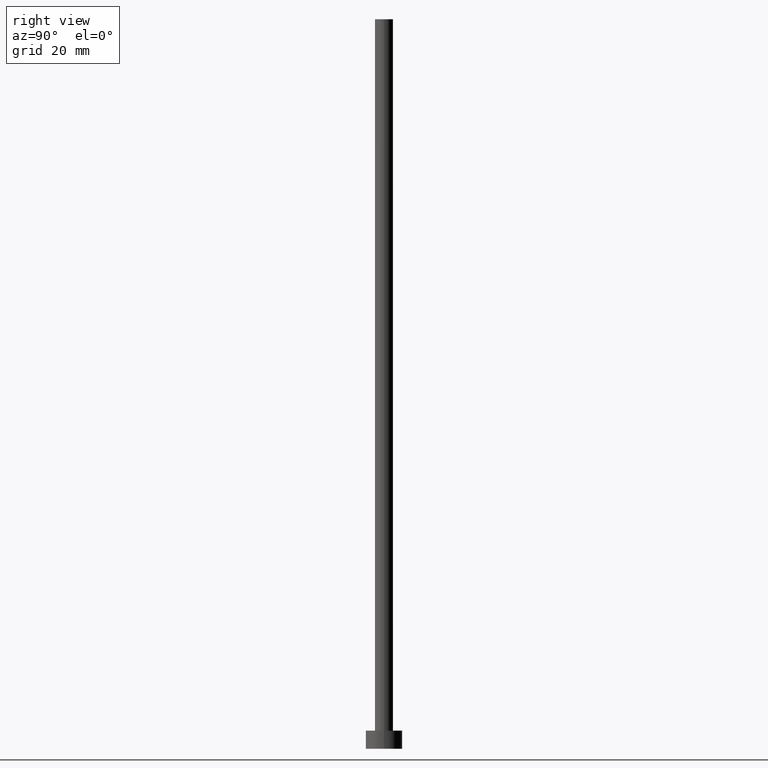
[diagram: clean part render]
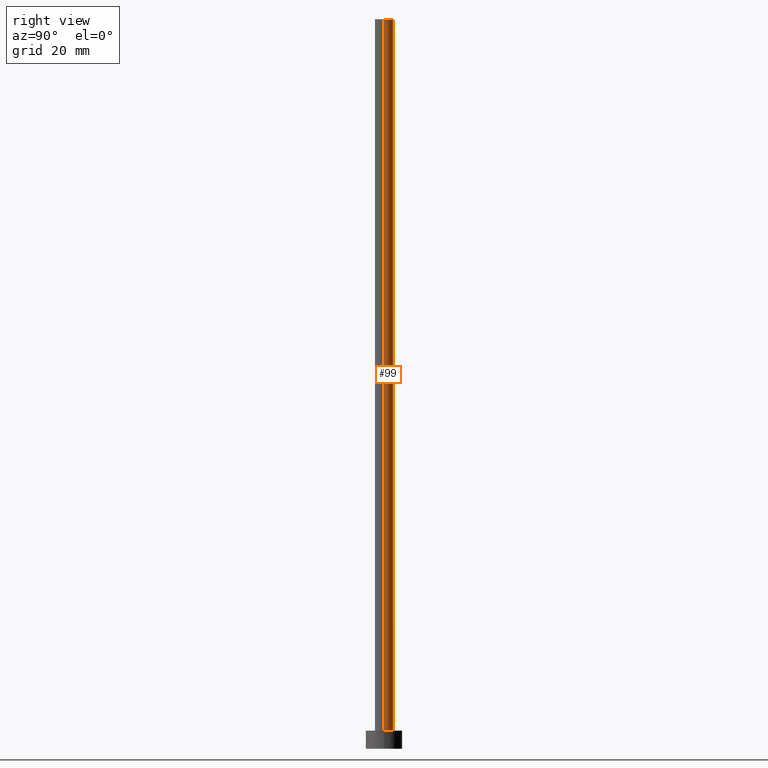
[diagram: same view with one face highlighted and labeled with its STEP entity id]
A machine part, right view. The second image highlights one B-rep face of the part: STEP entity #99.
In plain terms, the highlighted cylindrical surface (edge-blend (fillet) strip) has radius 2.5 mm, axis along (-0, -0, -1).
Its self-contained STEP definition (entity closure, byte-faithful):
#4 = DIRECTION ( 'NONE',  ( 1.000000000000000000, 0.000000000000000000, 0.000000000000000000 ) ) ;
#7 = VECTOR ( 'NONE', #237, 1000.000000000000000 ) ;
#23 = AXIS2_PLACEMENT_3D ( 'NONE', #239, #94, #4 ) ;
#31 = VERTEX_POINT ( 'NONE', #135 ) ;
#36 = DIRECTION ( 'NONE',  ( -0.000000000000000000, -0.000000000000000000, -1.000000000000000000 ) ) ;
#37 = VECTOR ( 'NONE', #214, 1000.000000000000000 ) ;
#52 = CARTESIAN_POINT ( 'NONE',  ( 0.000000000000000000, 0.000000000000000000, 200.0000000000000000 ) ) ;
#54 = CARTESIAN_POINT ( 'NONE',  ( 0.000000000000000000, 0.000000000000000000, 5.000000000000000000 ) ) ;
#59 = CARTESIAN_POINT ( 'NONE',  ( 2.500000000000000000, 3.061616997868383141E-16, 200.0000000000000000 ) ) ;
#67 = CARTESIAN_POINT ( 'NONE',  ( -2.500000000000000000, 0.000000000000000000, 5.000000000000000000 ) ) ;
#73 = DIRECTION ( 'NONE',  ( 1.000000000000000000, 0.000000000000000000, 0.000000000000000000 ) ) ;
#76 = CARTESIAN_POINT ( 'NONE',  ( 2.500000000000000000, 3.061616997868383141E-16, 200.0000000000000000 ) ) ;
#83 = EDGE_CURVE ( 'NONE', #233, #124, #201, .T. ) ;
#85 = LINE ( 'NONE', #166, #37 ) ;
#89 = ORIENTED_EDGE ( 'NONE', *, *, #229, .T. ) ;
#94 = DIRECTION ( 'NONE',  ( 0.000000000000000000, 0.000000000000000000, 1.000000000000000000 ) ) ;
#99 = ADVANCED_FACE ( 'NONE', ( #215 ), #217, .T. ) ;
#101 = ORIENTED_EDGE ( 'NONE', *, *, #83, .T. ) ;
#112 = EDGE_CURVE ( 'NONE', #31, #124, #85, .T. ) ;
#124 = VERTEX_POINT ( 'NONE', #67 ) ;
#127 = ORIENTED_EDGE ( 'NONE', *, *, #181, .F. ) ;
#135 = CARTESIAN_POINT ( 'NONE',  ( -2.500000000000000000, 0.000000000000000000, 200.0000000000000000 ) ) ;
#139 = CARTESIAN_POINT ( 'NONE',  ( 2.500000000000000000, 3.061616997868383141E-16, 5.000000000000000000 ) ) ;
#140 = LINE ( 'NONE', #59, #7 ) ;
#142 = CIRCLE ( 'NONE', #23, 2.500000000000000000 ) ;
#149 = AXIS2_PLACEMENT_3D ( 'NONE', #54, #172, #73 ) ;
#166 = CARTESIAN_POINT ( 'NONE',  ( -2.500000000000000000, 0.000000000000000000, 200.0000000000000000 ) ) ;
#172 = DIRECTION ( 'NONE',  ( 0.000000000000000000, 0.000000000000000000, 1.000000000000000000 ) ) ;
#181 = EDGE_CURVE ( 'NONE', #224, #31, #142, .T. ) ;
#184 = AXIS2_PLACEMENT_3D ( 'NONE', #52, #36, #194 ) ;
#187 = EDGE_LOOP ( 'NONE', ( #127, #89, #101, #244 ) ) ;
#194 = DIRECTION ( 'NONE',  ( -1.000000000000000000, 0.000000000000000000, 0.000000000000000000 ) ) ;
#201 = CIRCLE ( 'NONE', #149, 2.500000000000000000 ) ;
#214 = DIRECTION ( 'NONE',  ( -0.000000000000000000, -0.000000000000000000, -1.000000000000000000 ) ) ;
#215 = FACE_OUTER_BOUND ( 'NONE', #187, .T. ) ;
#217 = CYLINDRICAL_SURFACE ( 'NONE', #184, 2.500000000000000000 ) ;
#224 = VERTEX_POINT ( 'NONE', #76 ) ;
#229 = EDGE_CURVE ( 'NONE', #224, #233, #140, .T. ) ;
#233 = VERTEX_POINT ( 'NONE', #139 ) ;
#237 = DIRECTION ( 'NONE',  ( -0.000000000000000000, -0.000000000000000000, -1.000000000000000000 ) ) ;
#239 = CARTESIAN_POINT ( 'NONE',  ( 0.000000000000000000, 0.000000000000000000, 200.0000000000000000 ) ) ;
#244 = ORIENTED_EDGE ( 'NONE', *, *, #112, .F. ) ;